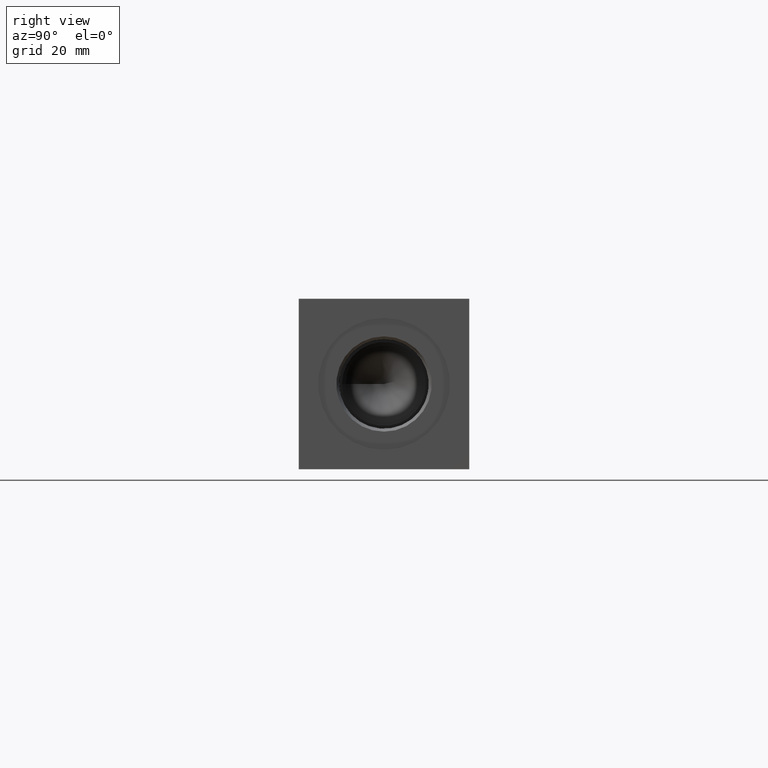
[diagram: clean part render]
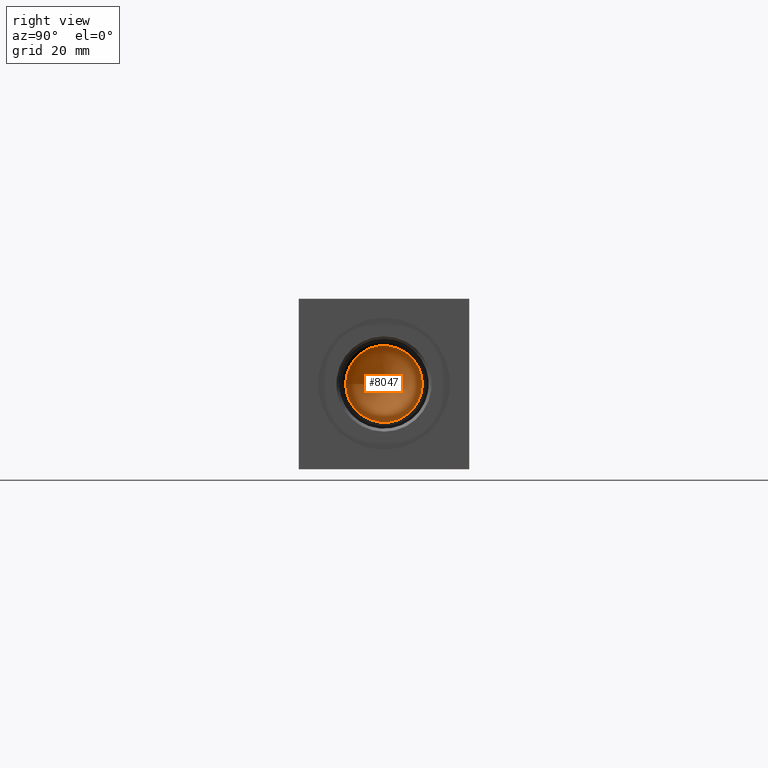
[diagram: same view with one face highlighted and labeled with its STEP entity id]
A machine part, right view. The second image highlights one B-rep face of the part: STEP entity #8047.
In plain terms, the highlighted conical surface has half-angle 60 deg.
Its self-contained STEP definition (entity closure, byte-faithful):
#76=CONICAL_SURFACE('',#8376,7.14375,1.0471975511966);
#115=CIRCLE('',#8377,14.2875);
#116=CIRCLE('',#8378,14.2875);
#972=FACE_OUTER_BOUND('',#1418,.T.);
#1418=EDGE_LOOP('',(#6675,#6676,#6677,#6678));
#2198=LINE('',#13562,#2934);
#2934=VECTOR('',#9737,7.14375);
#3607=VERTEX_POINT('',#13558);
#3608=VERTEX_POINT('',#13559);
#3609=VERTEX_POINT('',#13561);
#4660=EDGE_CURVE('',#3607,#3608,#115,.T.);
#4661=EDGE_CURVE('',#3608,#3609,#2198,.T.);
#4662=EDGE_CURVE('',#3608,#3607,#116,.T.);
#6675=ORIENTED_EDGE('',*,*,#4660,.T.);
#6676=ORIENTED_EDGE('',*,*,#4661,.T.);
#6677=ORIENTED_EDGE('',*,*,#4661,.F.);
#6678=ORIENTED_EDGE('',*,*,#4662,.T.);
#8047=ADVANCED_FACE('',(#972),#76,.F.);
#8376=AXIS2_PLACEMENT_3D('',#13557,#9733,#9734);
#8377=AXIS2_PLACEMENT_3D('',#13560,#9735,#9736);
#8378=AXIS2_PLACEMENT_3D('',#13563,#9738,#9739);
#9733=DIRECTION('center_axis',(1.,0.,0.));
#9734=DIRECTION('ref_axis',(0.,1.,0.));
#9735=DIRECTION('center_axis',(1.,0.,0.));
#9736=DIRECTION('ref_axis',(0.,1.,0.));
#9737=DIRECTION('',(-0.5,0.866025403784439,1.06057523872491E-16));
#9738=DIRECTION('center_axis',(1.,0.,0.));
#9739=DIRECTION('ref_axis',(0.,1.,0.));
#13557=CARTESIAN_POINT('Origin',(227.906064014477,31.75,31.75));
#13558=CARTESIAN_POINT('',(232.03051,46.0375,31.75));
#13559=CARTESIAN_POINT('',(232.03051,17.4625,31.75));
#13560=CARTESIAN_POINT('Origin',(232.03051,31.75,31.75));
#13561=CARTESIAN_POINT('',(223.781618028953,31.75,31.75));
#13562=CARTESIAN_POINT('',(227.906064014477,24.60625,31.75));
#13563=CARTESIAN_POINT('Origin',(232.03051,31.75,31.75));